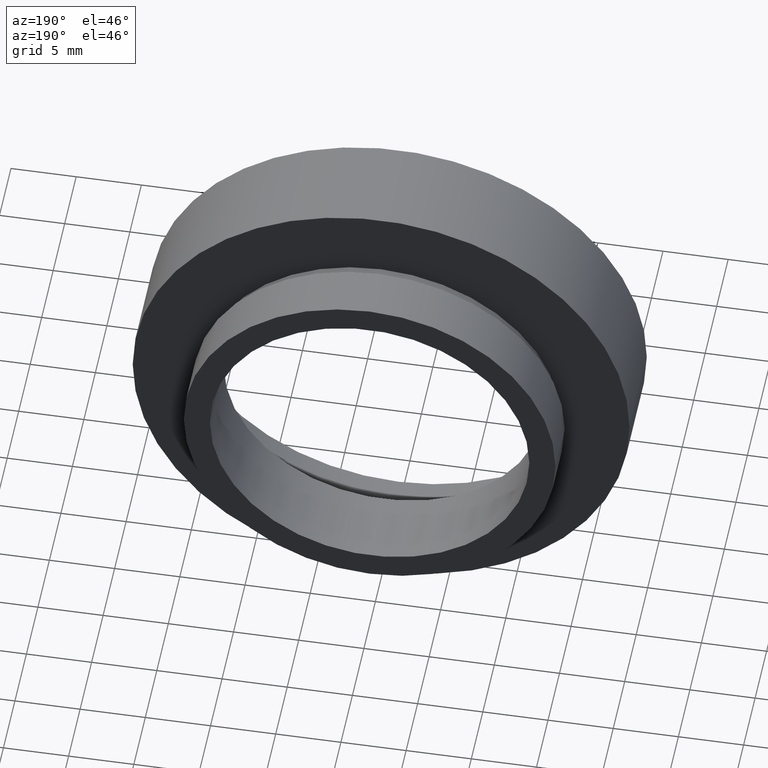
[diagram: clean part render]
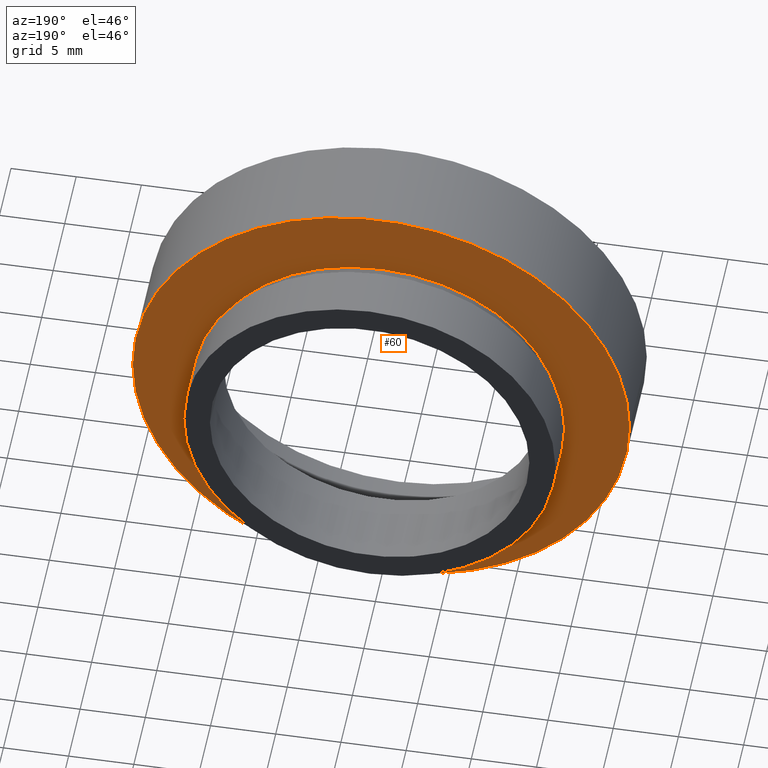
[diagram: same view with one face highlighted and labeled with its STEP entity id]
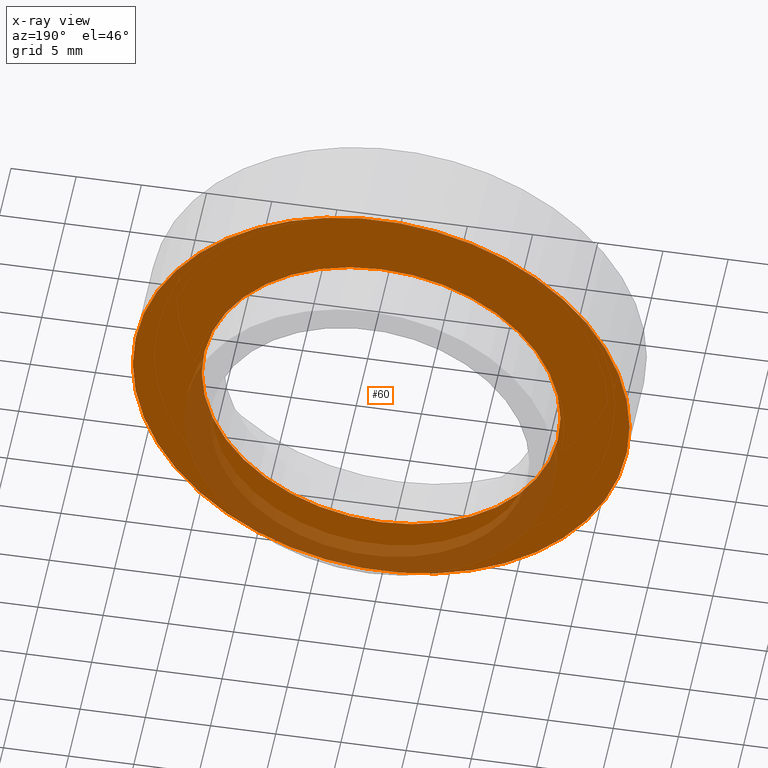
[diagram: x-ray of the same camera — body ghosted, the highlighted face saturated]
A machine part, auxiliary view. The second image highlights one B-rep face of the part: STEP entity #60.
The next image is the same camera in x-ray: the body ghosted, the highlighted face saturated — about 21% of this face is hidden behind the body in this view.
In plain terms, the highlighted planar face has unit normal (0, -1, 0).
Its self-contained STEP definition (entity closure, byte-faithful):
#17 = VERTEX_POINT ( 'NONE', #131 ) ;
#20 = DIRECTION ( 'NONE',  ( -1.000000000000000000, -1.365923996832131600E-016, 0.0000000000000000000 ) ) ;
#27 = VERTEX_POINT ( 'NONE', #352 ) ;
#60 = ADVANCED_FACE ( 'NONE', ( #244, #194 ), #271, .F. ) ;
#69 = DIRECTION ( 'NONE',  ( -1.224646799147351000E-016, 1.000000000000000000, -0.0000000000000000000 ) ) ;
#74 = AXIS2_PLACEMENT_3D ( 'NONE', #451, #491, #86 ) ;
#86 = DIRECTION ( 'NONE',  ( -1.000000000000000000, -1.261617073437678000E-016, 0.0000000000000000000 ) ) ;
#96 = CIRCLE ( 'NONE', #74, 13.75000000000000000 ) ;
#131 = CARTESIAN_POINT ( 'NONE',  ( -13.74999999999999800, 7.499999999999996400, 0.0000000000000000000 ) ) ;
#133 = CARTESIAN_POINT ( 'NONE',  ( 19.05000000000000100, 7.500000000000000900, 2.332952152375707600E-015 ) ) ;
#144 = EDGE_CURVE ( 'NONE', #17, #593, #452, .T. ) ;
#162 = EDGE_LOOP ( 'NONE', ( #415, #354 ) ) ;
#164 = CARTESIAN_POINT ( 'NONE',  ( 13.75000000000000200, 7.500000000000000000, 1.683889348827610700E-015 ) ) ;
#194 = FACE_OUTER_BOUND ( 'NONE', #453, .T. ) ;
#229 = CARTESIAN_POINT ( 'NONE',  ( 13.75000000000000200, 7.500000000000000000, 0.0000000000000000000 ) ) ;
#230 = EDGE_CURVE ( 'NONE', #593, #17, #96, .T. ) ;
#244 = FACE_BOUND ( 'NONE', #162, .T. ) ;
#253 = DIRECTION ( 'NONE',  ( 1.224646799147351000E-016, -1.000000000000000000, 0.0000000000000000000 ) ) ;
#271 = PLANE ( 'NONE',  #530 ) ;
#273 = AXIS2_PLACEMENT_3D ( 'NONE', #589, #69, #554 ) ;
#275 = CIRCLE ( 'NONE', #507, 19.05000000000000100 ) ;
#281 = DIRECTION ( 'NONE',  ( 1.000000000000000000, 1.224646799147351000E-016, 0.0000000000000000000 ) ) ;
#304 = DIRECTION ( 'NONE',  ( -1.224646799147351000E-016, 1.000000000000000000, -0.0000000000000000000 ) ) ;
#316 = DIRECTION ( 'NONE',  ( -1.224646799147351000E-016, 1.000000000000000000, -0.0000000000000000000 ) ) ;
#352 = CARTESIAN_POINT ( 'NONE',  ( -19.05000000000000100, 7.499999999999995600, 0.0000000000000000000 ) ) ;
#354 = ORIENTED_EDGE ( 'NONE', *, *, #230, .F. ) ;
#383 = VERTEX_POINT ( 'NONE', #133 ) ;
#401 = AXIS2_PLACEMENT_3D ( 'NONE', #619, #316, #604 ) ;
#415 = ORIENTED_EDGE ( 'NONE', *, *, #144, .F. ) ;
#445 = ORIENTED_EDGE ( 'NONE', *, *, #605, .T. ) ;
#450 = CARTESIAN_POINT ( 'NONE',  ( 1.149455719078122700E-015, 7.499999999999998200, 0.0000000000000000000 ) ) ;
#451 = CARTESIAN_POINT ( 'NONE',  ( 1.149455719078122700E-015, 7.499999999999998200, 0.0000000000000000000 ) ) ;
#452 = CIRCLE ( 'NONE', #401, 13.75000000000000000 ) ;
#453 = EDGE_LOOP ( 'NONE', ( #445, #487 ) ) ;
#487 = ORIENTED_EDGE ( 'NONE', *, *, #556, .T. ) ;
#491 = DIRECTION ( 'NONE',  ( -1.224646799147351000E-016, 1.000000000000000000, -0.0000000000000000000 ) ) ;
#507 = AXIS2_PLACEMENT_3D ( 'NONE', #450, #304, #20 ) ;
#530 = AXIS2_PLACEMENT_3D ( 'NONE', #229, #253, #281 ) ;
#539 = CIRCLE ( 'NONE', #273, 19.05000000000000100 ) ;
#554 = DIRECTION ( 'NONE',  ( -1.000000000000000000, -1.365923996832131600E-016, 0.0000000000000000000 ) ) ;
#556 = EDGE_CURVE ( 'NONE', #383, #27, #539, .T. ) ;
#589 = CARTESIAN_POINT ( 'NONE',  ( 1.149455719078122700E-015, 7.499999999999998200, 0.0000000000000000000 ) ) ;
#593 = VERTEX_POINT ( 'NONE', #164 ) ;
#604 = DIRECTION ( 'NONE',  ( -1.000000000000000000, -1.261617073437678000E-016, 0.0000000000000000000 ) ) ;
#605 = EDGE_CURVE ( 'NONE', #27, #383, #275, .T. ) ;
#619 = CARTESIAN_POINT ( 'NONE',  ( 1.149455719078122700E-015, 7.499999999999998200, 0.0000000000000000000 ) ) ;